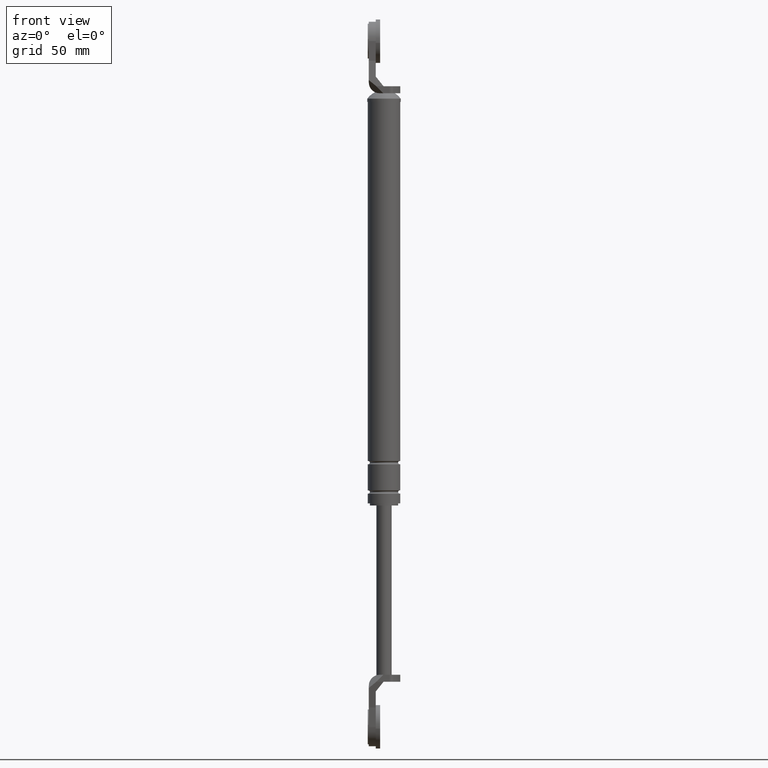
[diagram: clean part render]
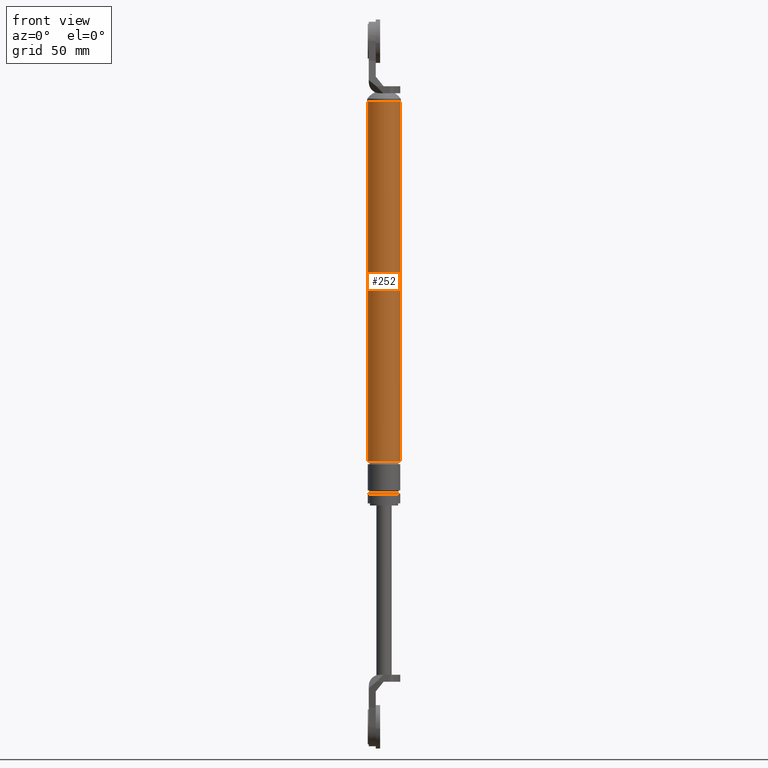
[diagram: same view with one face highlighted and labeled with its STEP entity id]
A machine part, front view. The second image highlights one B-rep face of the part: STEP entity #252.
In plain terms, the highlighted cylindrical surface (edge-blend (fillet) strip) has radius 7.5 mm, axis along (0, 0, -1).
Its self-contained STEP definition (entity closure, byte-faithful):
#252=ADVANCED_FACE('',(#777),#776,.T.);
#776=CYLINDRICAL_SURFACE('',#1395,7.50000000000E+000);
#777=FACE_OUTER_BOUND('',#1396,.T.);
#1392=CARTESIAN_POINT('',(7.00000000000E+000,0.00000000000E+000,1.02800000000E+003));
#1393=DIRECTION('',(-0.00000000000E+000,-0.00000000000E+000,1.00000000000E+000));
#1394=DIRECTION('',(1.00000000000E+000,-0.00000000000E+000,-0.00000000000E+000));
#1395=AXIS2_PLACEMENT_3D('',#1392,#1393,#1394);
#1396=EDGE_LOOP('',(#1836,#1837,#1838,#1839));
#1836=ORIENTED_EDGE('',*,*,#2100,.F.);
#1837=ORIENTED_EDGE('',*,*,#2124,.F.);
#1838=ORIENTED_EDGE('',*,*,#2030,.F.);
#1839=ORIENTED_EDGE('',*,*,#2125,.T.);
#2030=EDGE_CURVE('',#2426,#2427,#2428,.T.);
#2100=EDGE_CURVE('',#2898,#2899,#2900,.T.);
#2124=EDGE_CURVE('',#2427,#2898,#3056,.T.);
#2125=EDGE_CURVE('',#2426,#2899,#3062,.T.);
#2426=VERTEX_POINT('',#3676);
#2427=VERTEX_POINT('',#3677);
#2428=CIRCLE('',#3681,7.50000000000E+000);
#2898=VERTEX_POINT('',#3978);
#2899=VERTEX_POINT('',#3979);
#2900=CIRCLE('',#3983,7.50000000000E+000);
#3056=(BOUNDED_CURVE() B_SPLINE_CURVE(1,(#4076,#4077),.UNSPECIFIED.,.F.,.F.) B_SPLINE_CURVE_WITH_KNOTS((2,2),(5.39083557203E-002,9.46091644301E-001),.UNSPECIFIED.) CURVE() GEOMETRIC_REPRESENTATION_ITEM() RATIONAL_B_SPLINE_CURVE((1.00000000000E+000,1.00000000000E+000)) REPRESENTATION_ITEM('') );
#3062=(BOUNDED_CURVE() B_SPLINE_CURVE(1,(#4078,#4079),.UNSPECIFIED.,.F.,.F.) B_SPLINE_CURVE_WITH_KNOTS((2,2),(5.39083557951E-002,9.46091644205E-001),.UNSPECIFIED.) CURVE() GEOMETRIC_REPRESENTATION_ITEM() RATIONAL_B_SPLINE_CURVE((7.50000000000E-001,7.50000000000E-001)) REPRESENTATION_ITEM('') );
#3676=CARTESIAN_POINT('',(-5.00000000000E-001,0.00000000000E+000,2.80000000000E+001));
#3677=CARTESIAN_POINT('',(1.45000000000E+001,5.92118946467E-016,2.80000000000E+001));
#3678=CARTESIAN_POINT('',(7.00000000000E+000,0.00000000000E+000,2.80000000000E+001));
#3679=DIRECTION('',(-0.00000000000E+000,0.00000000000E+000,-1.00000000000E+000));
#3680=DIRECTION('',(-1.00000000000E+000,-1.22460635382E-016,0.00000000000E+000));
#3681=AXIS2_PLACEMENT_3D('',#3678,#3679,#3680);
#3978=CARTESIAN_POINT('',(1.45000000000E+001,0.00000000000E+000,1.93500000000E+002));
#3979=CARTESIAN_POINT('',(-5.00000000000E-001,5.92118946467E-016,1.93500000000E+002));
#3980=CARTESIAN_POINT('',(7.00000000000E+000,0.00000000000E+000,1.93500000000E+002));
#3981=DIRECTION('',(0.00000000000E+000,0.00000000000E+000,1.00000000000E+000));
#3982=DIRECTION('',(1.00000000000E+000,-1.22460635382E-016,0.00000000000E+000));
#3983=AXIS2_PLACEMENT_3D('',#3980,#3981,#3982);
#4076=CARTESIAN_POINT('',(1.45000000000E+001,0.00000000000E+000,2.79999999861E+001));
#4077=CARTESIAN_POINT('',(1.45000000000E+001,0.00000000000E+000,1.93500000018E+002));
#4078=CARTESIAN_POINT('',(-5.00000000000E-001,-2.96059473233E-016,2.80000000000E+001));
#4079=CARTESIAN_POINT('',(-5.00000000000E-001,-2.96059473233E-016,1.93500000000E+002));